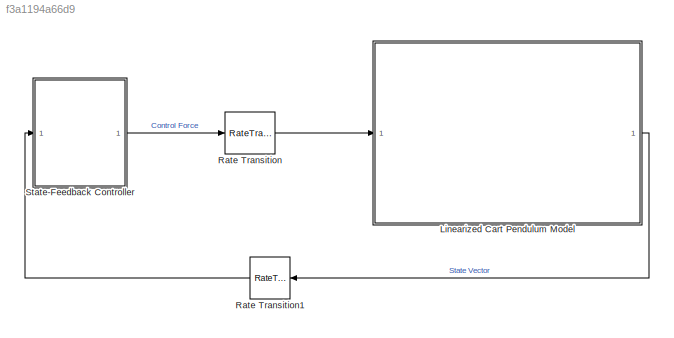
MODEL slx_f3a1194a66d9
KIND model
CONFIG AbsTol = auto
CONFIG EnableMultiTasking = off
CONFIG FixedStep = 0.001
CONFIG MaxStep = auto
CONFIG MinStep = auto
CONFIG RelTol = 1e-3
CONFIG SampleTimeConstraint = Unconstrained
CONFIG Solver = ode4
CONFIG SolverName = ode4
CONFIG StartTime = 0.0
CONFIG StopTime = 3
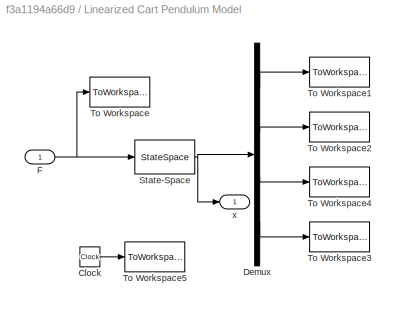
BLOCK [SubSystem] Linearized Cart Pendulum Model
  Ports = [1, 1]
  RequestExecContextInheritance = off
BLOCK [Clock] Linearized Cart Pendulum Model/Clock
BLOCK [Demux] Linearized Cart Pendulum Model/Demux
  DisplayOption = bar
  Ports = [1, 4]
BLOCK [Inport] Linearized Cart Pendulum Model/F
  IconDisplay = Port number
BLOCK [StateSpace] Linearized Cart Pendulum Model/State-Space
  A = Aa
  B = Ba
  C = Ca
  D = Da
  InitialCondition = [x10;x20;x30;x40]
  Ports = [1, 1]
BLOCK [ToWorkspace] Linearized Cart Pendulum Model/To Workspace
  FixptAsFi = on
  MaxDataPoints = inf
  Ports = [1]
  SampleTime = -1
  Save2DSignal = 3-D array (concatenate along third dimension)
  VariableName = Fa
BLOCK [ToWorkspace] Linearized Cart Pendulum Model/To Workspace1
  FixptAsFi = on
  MaxDataPoints = inf
  Ports = [1]
  SampleTime = -1
  Save2DSignal = 3-D array (concatenate along third dimension)
  VariableName = x1a
BLOCK [ToWorkspace] Linearized Cart Pendulum Model/To Workspace2
  FixptAsFi = on
  MaxDataPoints = inf
  Ports = [1]
  SampleTime = -1
  Save2DSignal = 3-D array (concatenate along third dimension)
  VariableName = x2a
BLOCK [ToWorkspace] Linearized Cart Pendulum Model/To Workspace3
  FixptAsFi = on
  MaxDataPoints = inf
  Ports = [1]
  SampleTime = -1
  Save2DSignal = 3-D array (concatenate along third dimension)
  VariableName = x4a
BLOCK [ToWorkspace] Linearized Cart Pendulum Model/To Workspace4
  FixptAsFi = on
  MaxDataPoints = inf
  Ports = [1]
  SampleTime = -1
  Save2DSignal = 3-D array (concatenate along third dimension)
  VariableName = x3a
BLOCK [ToWorkspace] Linearized Cart Pendulum Model/To Workspace5
  FixptAsFi = on
  MaxDataPoints = inf
  Ports = [1]
  SampleTime = -1
  Save2DSignal = 3-D array (concatenate along third dimension)
  VariableName = ta
BLOCK [Outport] Linearized Cart Pendulum Model/x
  IconDisplay = Port number
BLOCK [RateTransition] Rate Transition
  InitialCondition = -K_a*[x10;x20;x30;x40]
BLOCK [RateTransition] Rate Transition1
  InitialCondition = [x10;x20;x30;x40]
  OutPortSampleTime = T_s
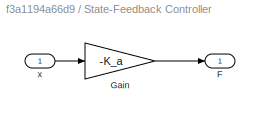
BLOCK [SubSystem] State-Feedback Controller
  Ports = [1, 1]
  RequestExecContextInheritance = off
BLOCK [Outport] State-Feedback Controller/F
  IconDisplay = Port number
BLOCK [Gain] State-Feedback Controller/Gain
  Gain = -K_a
  Multiplication = Matrix(K*u)
  OutDataTypeStr = Inherit: Inherit via internal rule
  ParamDataTypeStr = Inherit: Inherit via internal rule
  SaturateOnIntegerOverflow = off
BLOCK [Inport] State-Feedback Controller/x
  IconDisplay = Port number
LINE Linearized Cart Pendulum Model/Clock:1 -> Linearized Cart Pendulum Model/To Workspace5:1
LINE Linearized Cart Pendulum Model/Demux:1 -> Linearized Cart Pendulum Model/To Workspace1:1
LINE Linearized Cart Pendulum Model/Demux:2 -> Linearized Cart Pendulum Model/To Workspace2:1
LINE Linearized Cart Pendulum Model/Demux:3 -> Linearized Cart Pendulum Model/To Workspace4:1
LINE Linearized Cart Pendulum Model/Demux:4 -> Linearized Cart Pendulum Model/To Workspace3:1
NET Linearized Cart Pendulum Model/F:1 -> Linearized Cart Pendulum Model/State-Space:1, Linearized Cart Pendulum Model/To Workspace:1
NET Linearized Cart Pendulum Model/State-Space:1 -> Linearized Cart Pendulum Model/Demux:1, Linearized Cart Pendulum Model/x:1
LINE Linearized Cart Pendulum Model:1 -> Rate Transition1:1
LINE Rate Transition1:1 -> State-Feedback Controller:1
LINE Rate Transition:1 -> Linearized Cart Pendulum Model:1
LINE State-Feedback Controller/Gain:1 -> State-Feedback Controller/F:1
LINE State-Feedback Controller/x:1 -> State-Feedback Controller/Gain:1
LINE State-Feedback Controller:1 -> Rate Transition:1
note: NET lines group one-source signal fan-out (src -> all destinations, sorted); 1:1 wires keep LINE
